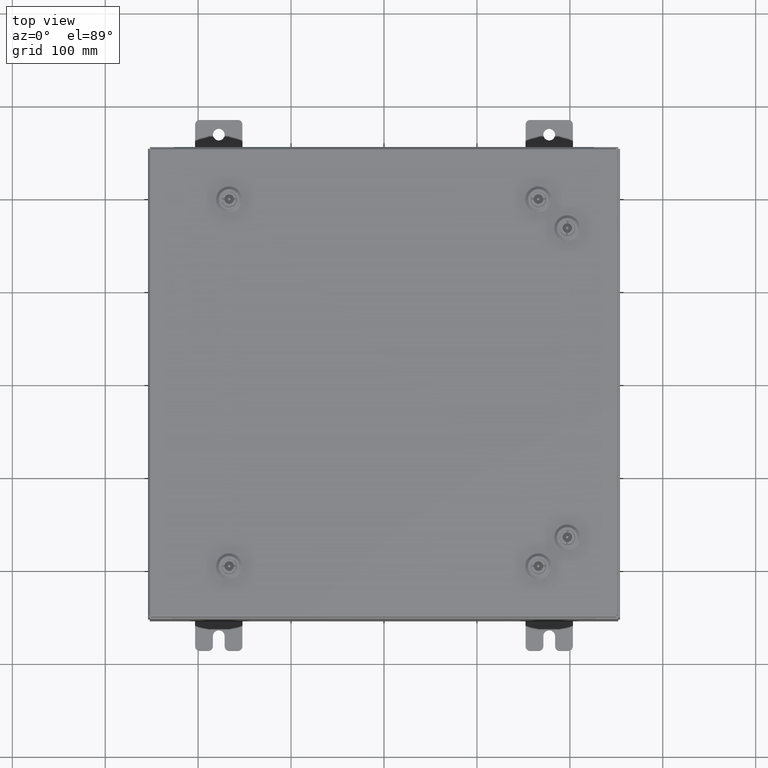
[diagram: clean part render]
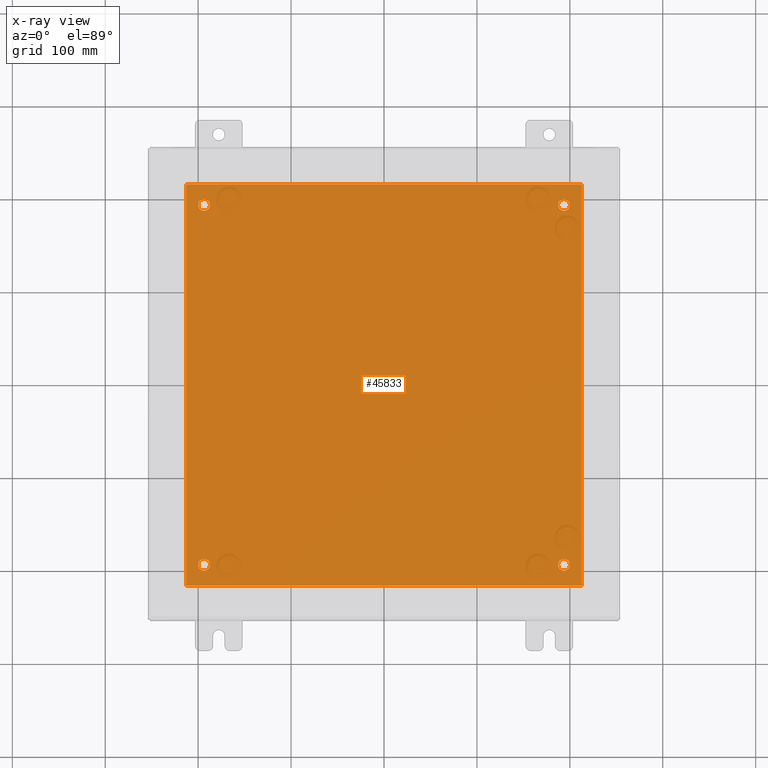
[diagram: x-ray — body ghosted, one internal face saturated and labeled with its STEP entity id]
A machine part, top view, then the same camera in x-ray: the body is ghosted and one INTERNAL B-rep face — a face not visible from any outside direction — is saturated and labeled: STEP entity #45833.
In plain terms, the highlighted planar face has unit normal (0, 0, -1).
Its self-contained STEP definition (entity closure, byte-faithful):
#956 = PLANE ( 'NONE',  #23862 ) ;
#1584 = CARTESIAN_POINT ( 'NONE',  ( -7.875000000000001800, 7.625000000000000900, -0.1039999999999999800 ) ) ;
#1903 = DIRECTION ( 'NONE',  ( -0.0000000000000000000, -0.0000000000000000000, 1.000000000000000000 ) ) ;
#1937 = LINE ( 'NONE', #31514, #26576 ) ;
#1968 = CARTESIAN_POINT ( 'NONE',  ( -8.382999999999999100, -8.499999999999998200, -0.1039999999999998100 ) ) ;
#2233 = FACE_BOUND ( 'NONE', #19376, .T. ) ;
#3911 = VERTEX_POINT ( 'NONE', #8887 ) ;
#4983 = DIRECTION ( 'NONE',  ( -0.0000000000000000000, -0.0000000000000000000, 1.000000000000000000 ) ) ;
#5947 = CARTESIAN_POINT ( 'NONE',  ( 0.0000000000000000000, 0.0000000000000000000, -0.1039999999999999800 ) ) ;
#6350 = CARTESIAN_POINT ( 'NONE',  ( 8.383000000000000900, -8.499999999999998200, -0.1039999999999999800 ) ) ;
#6410 = CIRCLE ( 'NONE', #24643, 0.2499999999999987000 ) ;
#6475 = VERTEX_POINT ( 'NONE', #60161 ) ;
#6961 = DIRECTION ( 'NONE',  ( -1.000000000000000000, -0.0000000000000000000, -0.0000000000000000000 ) ) ;
#7295 = EDGE_CURVE ( 'NONE', #8194, #15005, #13133, .T. ) ;
#8100 = ORIENTED_EDGE ( 'NONE', *, *, #15129, .F. ) ;
#8194 = VERTEX_POINT ( 'NONE', #1968 ) ;
#8539 = EDGE_CURVE ( 'NONE', #36958, #6475, #40014, .T. ) ;
#8825 = ORIENTED_EDGE ( 'NONE', *, *, #21370, .T. ) ;
#8887 = CARTESIAN_POINT ( 'NONE',  ( 7.375000000000003600, -7.625000000000000900, -0.1039999999999999800 ) ) ;
#10928 = DIRECTION ( 'NONE',  ( -1.000000000000000000, 0.0000000000000000000, -0.0000000000000000000 ) ) ;
#11350 = EDGE_CURVE ( 'NONE', #15005, #50381, #59701, .T. ) ;
#11412 = ORIENTED_EDGE ( 'NONE', *, *, #8539, .T. ) ;
#13133 = LINE ( 'NONE', #34884, #39326 ) ;
#14962 = DIRECTION ( 'NONE',  ( -0.0000000000000000000, -0.0000000000000000000, 1.000000000000000000 ) ) ;
#15005 = VERTEX_POINT ( 'NONE', #6350 ) ;
#15129 = EDGE_CURVE ( 'NONE', #50381, #35846, #1937, .T. ) ;
#15367 = FACE_BOUND ( 'NONE', #37221, .T. ) ;
#15550 = CARTESIAN_POINT ( 'NONE',  ( 8.383000000000000900, 8.500000000000000000, -0.1039999999999999800 ) ) ;
#16153 = VERTEX_POINT ( 'NONE', #47548 ) ;
#17376 = DIRECTION ( 'NONE',  ( -0.0000000000000000000, -0.0000000000000000000, 1.000000000000000000 ) ) ;
#19376 = EDGE_LOOP ( 'NONE', ( #26718, #33406 ) ) ;
#19383 = CIRCLE ( 'NONE', #36996, 0.2499999999999987000 ) ;
#20331 = ORIENTED_EDGE ( 'NONE', *, *, #11350, .F. ) ;
#21370 = EDGE_CURVE ( 'NONE', #31720, #47465, #39881, .T. ) ;
#21503 = AXIS2_PLACEMENT_3D ( 'NONE', #22139, #56448, #27067 ) ;
#21904 = ORIENTED_EDGE ( 'NONE', *, *, #43370, .T. ) ;
#22139 = CARTESIAN_POINT ( 'NONE',  ( -7.625000000000001800, 7.625000000000000900, -0.1039999999999999800 ) ) ;
#23494 = VECTOR ( 'NONE', #62596, 39.37007874015748100 ) ;
#23862 = AXIS2_PLACEMENT_3D ( 'NONE', #5947, #59723, #10928 ) ;
#24307 = CARTESIAN_POINT ( 'NONE',  ( -7.625000000000001800, -7.625000000000000900, -0.1039999999999999800 ) ) ;
#24308 = CARTESIAN_POINT ( 'NONE',  ( 7.625000000000001800, 7.625000000000000900, -0.1039999999999999800 ) ) ;
#24643 = AXIS2_PLACEMENT_3D ( 'NONE', #24308, #58577, #29315 ) ;
#26576 = VECTOR ( 'NONE', #6961, 39.37007874015748100 ) ;
#26718 = ORIENTED_EDGE ( 'NONE', *, *, #45115, .T. ) ;
#26866 = CARTESIAN_POINT ( 'NONE',  ( -8.382999999999999100, 8.500000000000000000, -0.1039999999999998100 ) ) ;
#27067 = DIRECTION ( 'NONE',  ( -1.000000000000000000, 0.0000000000000000000, 0.0000000000000000000 ) ) ;
#28154 = DIRECTION ( 'NONE',  ( 1.000000000000000000, 0.0000000000000000000, 0.0000000000000000000 ) ) ;
#28223 = CARTESIAN_POINT ( 'NONE',  ( -7.375000000000001800, -7.625000000000000900, -0.1039999999999999800 ) ) ;
#28381 = FACE_BOUND ( 'NONE', #39170, .T. ) ;
#29100 = CARTESIAN_POINT ( 'NONE',  ( 7.875000000000000900, -7.625000000000000900, -0.1039999999999999800 ) ) ;
#29213 = CIRCLE ( 'NONE', #29682, 0.2499999999999998100 ) ;
#29314 = DIRECTION ( 'NONE',  ( -1.000000000000000000, 0.0000000000000000000, 0.0000000000000000000 ) ) ;
#29315 = DIRECTION ( 'NONE',  ( -1.000000000000000000, 0.0000000000000000000, 0.0000000000000000000 ) ) ;
#29682 = AXIS2_PLACEMENT_3D ( 'NONE', #31409, #1903, #36391 ) ;
#31317 = ORIENTED_EDGE ( 'NONE', *, *, #7295, .F. ) ;
#31409 = CARTESIAN_POINT ( 'NONE',  ( -7.625000000000001800, 7.625000000000000900, -0.1039999999999999800 ) ) ;
#31514 = CARTESIAN_POINT ( 'NONE',  ( -8.500000000000000000, 8.500000000000000000, -0.1039999999999999800 ) ) ;
#31720 = VERTEX_POINT ( 'NONE', #41657 ) ;
#32339 = EDGE_CURVE ( 'NONE', #56519, #16153, #40920, .T. ) ;
#32713 = AXIS2_PLACEMENT_3D ( 'NONE', #59941, #59864, #59803 ) ;
#33406 = ORIENTED_EDGE ( 'NONE', *, *, #32339, .T. ) ;
#34509 = CARTESIAN_POINT ( 'NONE',  ( -7.625000000000001800, -7.625000000000000900, -0.1039999999999999800 ) ) ;
#34884 = CARTESIAN_POINT ( 'NONE',  ( -8.500000000000000000, -8.499999999999998200, -0.1039999999999999800 ) ) ;
#35846 = VERTEX_POINT ( 'NONE', #26866 ) ;
#36391 = DIRECTION ( 'NONE',  ( -1.000000000000000000, 0.0000000000000000000, 0.0000000000000000000 ) ) ;
#36429 = AXIS2_PLACEMENT_3D ( 'NONE', #24307, #58576, #29314 ) ;
#36611 = ORIENTED_EDGE ( 'NONE', *, *, #48088, .T. ) ;
#36958 = VERTEX_POINT ( 'NONE', #62150 ) ;
#36996 = AXIS2_PLACEMENT_3D ( 'NONE', #46900, #17376, #51781 ) ;
#37221 = EDGE_LOOP ( 'NONE', ( #50378, #63092 ) ) ;
#38367 = CIRCLE ( 'NONE', #36429, 0.2499999999999998100 ) ;
#39170 = EDGE_LOOP ( 'NONE', ( #21904, #11412 ) ) ;
#39326 = VECTOR ( 'NONE', #28154, 39.37007874015748100 ) ;
#39465 = DIRECTION ( 'NONE',  ( -1.000000000000000000, 0.0000000000000000000, 0.0000000000000000000 ) ) ;
#39881 = CIRCLE ( 'NONE', #43958, 0.2499999999999998100 ) ;
#40014 = CIRCLE ( 'NONE', #32713, 0.2499999999999987000 ) ;
#40015 = FACE_OUTER_BOUND ( 'NONE', #46436, .T. ) ;
#40920 = CIRCLE ( 'NONE', #21503, 0.2499999999999998100 ) ;
#41657 = CARTESIAN_POINT ( 'NONE',  ( -7.875000000000001800, -7.625000000000000900, -0.1039999999999999800 ) ) ;
#43087 = FACE_BOUND ( 'NONE', #56649, .T. ) ;
#43132 = CARTESIAN_POINT ( 'NONE',  ( -8.382999999999999100, 8.500000000000000000, -0.1039999999999998100 ) ) ;
#43370 = EDGE_CURVE ( 'NONE', #6475, #36958, #6410, .T. ) ;
#43958 = AXIS2_PLACEMENT_3D ( 'NONE', #34509, #4983, #39465 ) ;
#44456 = CARTESIAN_POINT ( 'NONE',  ( 7.625000000000001800, -7.625000000000000900, -0.1039999999999999800 ) ) ;
#45115 = EDGE_CURVE ( 'NONE', #16153, #56519, #29213, .T. ) ;
#45833 = ADVANCED_FACE ( 'NONE', ( #43087, #15367, #28381, #2233, #40015 ), #956, .T. ) ;
#46436 = EDGE_LOOP ( 'NONE', ( #31317, #50435, #8100, #20331 ) ) ;
#46900 = CARTESIAN_POINT ( 'NONE',  ( 7.625000000000001800, -7.625000000000000900, -0.1039999999999999800 ) ) ;
#47008 = AXIS2_PLACEMENT_3D ( 'NONE', #44456, #14962, #49415 ) ;
#47465 = VERTEX_POINT ( 'NONE', #28223 ) ;
#47548 = CARTESIAN_POINT ( 'NONE',  ( -7.375000000000001800, 7.625000000000000900, -0.1039999999999999800 ) ) ;
#48088 = EDGE_CURVE ( 'NONE', #47465, #31720, #38367, .T. ) ;
#49415 = DIRECTION ( 'NONE',  ( -1.000000000000000000, 0.0000000000000000000, 0.0000000000000000000 ) ) ;
#50081 = EDGE_CURVE ( 'NONE', #35846, #8194, #62521, .T. ) ;
#50378 = ORIENTED_EDGE ( 'NONE', *, *, #61402, .T. ) ;
#50381 = VERTEX_POINT ( 'NONE', #15550 ) ;
#50435 = ORIENTED_EDGE ( 'NONE', *, *, #50081, .F. ) ;
#50804 = DIRECTION ( 'NONE',  ( 0.0000000000000000000, 1.000000000000000000, 0.0000000000000000000 ) ) ;
#51465 = CARTESIAN_POINT ( 'NONE',  ( 8.383000000000000900, -8.499999999999998200, -0.1039999999999998100 ) ) ;
#51781 = DIRECTION ( 'NONE',  ( -1.000000000000000000, 0.0000000000000000000, 0.0000000000000000000 ) ) ;
#54771 = CIRCLE ( 'NONE', #47008, 0.2499999999999987000 ) ;
#55980 = VECTOR ( 'NONE', #50804, 39.37007874015748100 ) ;
#56448 = DIRECTION ( 'NONE',  ( -0.0000000000000000000, -0.0000000000000000000, 1.000000000000000000 ) ) ;
#56519 = VERTEX_POINT ( 'NONE', #1584 ) ;
#56649 = EDGE_LOOP ( 'NONE', ( #36611, #8825 ) ) ;
#57606 = EDGE_CURVE ( 'NONE', #3911, #59345, #19383, .T. ) ;
#58576 = DIRECTION ( 'NONE',  ( -0.0000000000000000000, -0.0000000000000000000, 1.000000000000000000 ) ) ;
#58577 = DIRECTION ( 'NONE',  ( -0.0000000000000000000, -0.0000000000000000000, 1.000000000000000000 ) ) ;
#59345 = VERTEX_POINT ( 'NONE', #29100 ) ;
#59701 = LINE ( 'NONE', #51465, #55980 ) ;
#59723 = DIRECTION ( 'NONE',  ( 0.0000000000000000000, 0.0000000000000000000, -1.000000000000000000 ) ) ;
#59803 = DIRECTION ( 'NONE',  ( -1.000000000000000000, 0.0000000000000000000, 0.0000000000000000000 ) ) ;
#59864 = DIRECTION ( 'NONE',  ( -0.0000000000000000000, -0.0000000000000000000, 1.000000000000000000 ) ) ;
#59941 = CARTESIAN_POINT ( 'NONE',  ( 7.625000000000001800, 7.625000000000000900, -0.1039999999999999800 ) ) ;
#60161 = CARTESIAN_POINT ( 'NONE',  ( 7.875000000000000900, 7.625000000000000900, -0.1039999999999999800 ) ) ;
#61402 = EDGE_CURVE ( 'NONE', #59345, #3911, #54771, .T. ) ;
#62150 = CARTESIAN_POINT ( 'NONE',  ( 7.375000000000003600, 7.625000000000000900, -0.1039999999999999800 ) ) ;
#62521 = LINE ( 'NONE', #43132, #23494 ) ;
#62596 = DIRECTION ( 'NONE',  ( 0.0000000000000000000, -1.000000000000000000, 0.0000000000000000000 ) ) ;
#63092 = ORIENTED_EDGE ( 'NONE', *, *, #57606, .T. ) ;